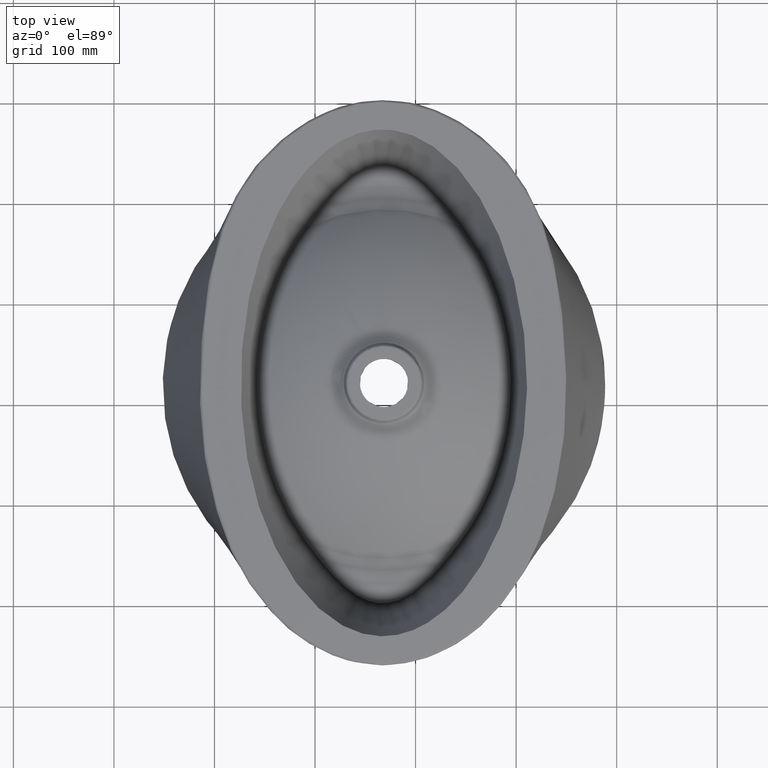
[diagram: clean part render]
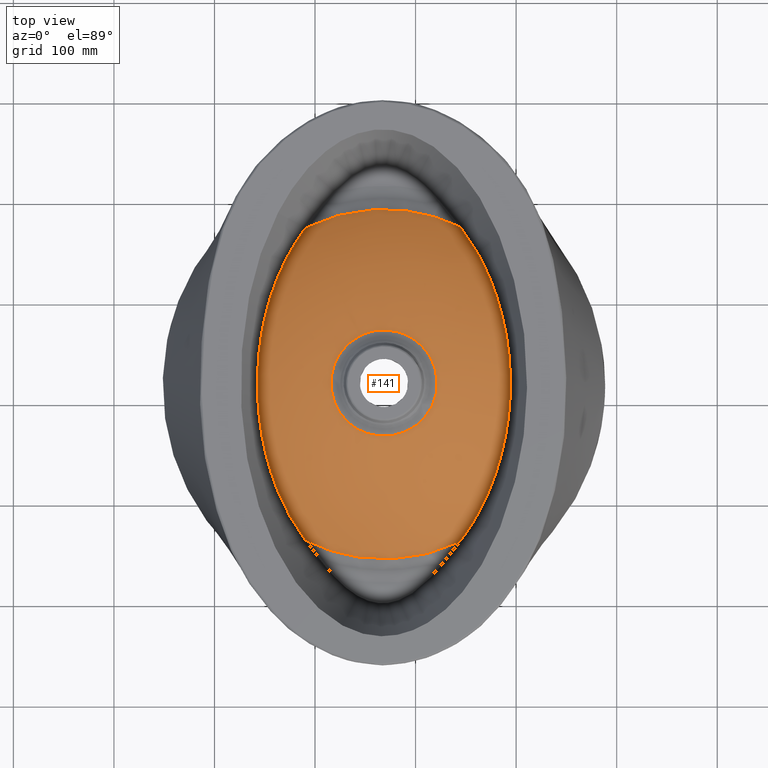
[diagram: same view with one face highlighted and labeled with its STEP entity id]
A machine part, top view. The second image highlights one B-rep face of the part: STEP entity #141.
In plain terms, the highlighted face is a freeform B-spline surface patch.
Its self-contained STEP definition (entity closure, byte-faithful):
#112=B_SPLINE_SURFACE_WITH_KNOTS('',3,3,((#1269,#1270,#1271,#1272,#1273,
#1274,#1275,#1276,#1277,#1278,#1279,#1280,#1281,#1282,#1283,#1284),(#1285,
#1286,#1287,#1288,#1289,#1290,#1291,#1292,#1293,#1294,#1295,#1296,#1297,
#1298,#1299,#1300),(#1301,#1302,#1303,#1304,#1305,#1306,#1307,#1308,#1309,
#1310,#1311,#1312,#1313,#1314,#1315,#1316),(#1317,#1318,#1319,#1320,#1321,
#1322,#1323,#1324,#1325,#1326,#1327,#1328,#1329,#1330,#1331,#1332),(#1333,
#1334,#1335,#1336,#1337,#1338,#1339,#1340,#1341,#1342,#1343,#1344,#1345,
#1346,#1347,#1348),(#1349,#1350,#1351,#1352,#1353,#1354,#1355,#1356,#1357,
#1358,#1359,#1360,#1361,#1362,#1363,#1364),(#1365,#1366,#1367,#1368,#1369,
#1370,#1371,#1372,#1373,#1374,#1375,#1376,#1377,#1378,#1379,#1380),(#1381,
#1382,#1383,#1384,#1385,#1386,#1387,#1388,#1389,#1390,#1391,#1392,#1393,
#1394,#1395,#1396),(#1397,#1398,#1399,#1400,#1401,#1402,#1403,#1404,#1405,
#1406,#1407,#1408,#1409,#1410,#1411,#1412),(#1413,#1414,#1415,#1416,#1417,
#1418,#1419,#1420,#1421,#1422,#1423,#1424,#1425,#1426,#1427,#1428),(#1429,
#1430,#1431,#1432,#1433,#1434,#1435,#1436,#1437,#1438,#1439,#1440,#1441,
#1442,#1443,#1444),(#1445,#1446,#1447,#1448,#1449,#1450,#1451,#1452,#1453,
#1454,#1455,#1456,#1457,#1458,#1459,#1460),(#1461,#1462,#1463,#1464,#1465,
#1466,#1467,#1468,#1469,#1470,#1471,#1472,#1473,#1474,#1475,#1476),(#1477,
#1478,#1479,#1480,#1481,#1482,#1483,#1484,#1485,#1486,#1487,#1488,#1489,
#1490,#1491,#1492),(#1493,#1494,#1495,#1496,#1497,#1498,#1499,#1500,#1501,
#1502,#1503,#1504,#1505,#1506,#1507,#1508),(#1509,#1510,#1511,#1512,#1513,
#1514,#1515,#1516,#1517,#1518,#1519,#1520,#1521,#1522,#1523,#1524),(#1525,
#1526,#1527,#1528,#1529,#1530,#1531,#1532,#1533,#1534,#1535,#1536,#1537,
#1538,#1539,#1540),(#1541,#1542,#1543,#1544,#1545,#1546,#1547,#1548,#1549,
#1550,#1551,#1552,#1553,#1554,#1555,#1556),(#1557,#1558,#1559,#1560,#1561,
#1562,#1563,#1564,#1565,#1566,#1567,#1568,#1569,#1570,#1571,#1572),(#1573,
#1574,#1575,#1576,#1577,#1578,#1579,#1580,#1581,#1582,#1583,#1584,#1585,
#1586,#1587,#1588),(#1589,#1590,#1591,#1592,#1593,#1594,#1595,#1596,#1597,
#1598,#1599,#1600,#1601,#1602,#1603,#1604),(#1605,#1606,#1607,#1608,#1609,
#1610,#1611,#1612,#1613,#1614,#1615,#1616,#1617,#1618,#1619,#1620),(#1621,
#1622,#1623,#1624,#1625,#1626,#1627,#1628,#1629,#1630,#1631,#1632,#1633,
#1634,#1635,#1636),(#1637,#1638,#1639,#1640,#1641,#1642,#1643,#1644,#1645,
#1646,#1647,#1648,#1649,#1650,#1651,#1652),(#1653,#1654,#1655,#1656,#1657,
#1658,#1659,#1660,#1661,#1662,#1663,#1664,#1665,#1666,#1667,#1668),(#1669,
#1670,#1671,#1672,#1673,#1674,#1675,#1676,#1677,#1678,#1679,#1680,#1681,
#1682,#1683,#1684),(#1685,#1686,#1687,#1688,#1689,#1690,#1691,#1692,#1693,
#1694,#1695,#1696,#1697,#1698,#1699,#1700),(#1701,#1702,#1703,#1704,#1705,
#1706,#1707,#1708,#1709,#1710,#1711,#1712,#1713,#1714,#1715,#1716),(#1717,
#1718,#1719,#1720,#1721,#1722,#1723,#1724,#1725,#1726,#1727,#1728,#1729,
#1730,#1731,#1732),(#1733,#1734,#1735,#1736,#1737,#1738,#1739,#1740,#1741,
#1742,#1743,#1744,#1745,#1746,#1747,#1748),(#1749,#1750,#1751,#1752,#1753,
#1754,#1755,#1756,#1757,#1758,#1759,#1760,#1761,#1762,#1763,#1764),(#1765,
#1766,#1767,#1768,#1769,#1770,#1771,#1772,#1773,#1774,#1775,#1776,#1777,
#1778,#1779,#1780),(#1781,#1782,#1783,#1784,#1785,#1786,#1787,#1788,#1789,
#1790,#1791,#1792,#1793,#1794,#1795,#1796),(#1797,#1798,#1799,#1800,#1801,
#1802,#1803,#1804,#1805,#1806,#1807,#1808,#1809,#1810,#1811,#1812)),
 .UNSPECIFIED.,.T.,.F.,.F.,(1,3,2,2,2,2,2,2,2,2,2,2,2,2,2,2,2,3,1),(4,2,
2,1,1,3,3,4),(-0.0625000000000001,0.,0.0625000000000001,0.125,0.1875,0.25,
0.3125,0.375,0.4375,0.5,0.5625,0.625,0.6875,0.75,0.8125,0.875,0.9375,1.,
1.0625),(0.,0.0907513035158669,0.318999822234712,0.374664670297258,0.445354135735602,
0.906199662762278,0.936128689399076,1.),.UNSPECIFIED.);
#141=ADVANCED_FACE('',(#169,#170),#112,.F.);
#169=FACE_BOUND('',#202,.T.);
#170=FACE_BOUND('',#203,.T.);
#202=EDGE_LOOP('',(#249,#250,#251,#252));
#203=EDGE_LOOP('',(#253));
#249=ORIENTED_EDGE('',*,*,#355,.T.);
#250=ORIENTED_EDGE('',*,*,#353,.F.);
#251=ORIENTED_EDGE('',*,*,#356,.T.);
#252=ORIENTED_EDGE('',*,*,#357,.F.);
#253=ORIENTED_EDGE('',*,*,#358,.F.);
#321=VERTEX_POINT('',#979);
#324=VERTEX_POINT('',#996);
#325=VERTEX_POINT('',#1139);
#326=VERTEX_POINT('',#1162);
#327=VERTEX_POINT('',#1268);
#353=EDGE_CURVE('',#324,#321,#392,.T.);
#355=EDGE_CURVE('',#325,#321,#394,.T.);
#356=EDGE_CURVE('',#324,#326,#395,.T.);
#357=EDGE_CURVE('',#325,#326,#396,.T.);
#358=EDGE_CURVE('',#327,#327,#397,.T.);
#392=B_SPLINE_CURVE_WITH_KNOTS('',3,(#997,#998,#999,#1000,#1001,#1002,#1003,
#1004,#1005,#1006,#1007,#1008,#1009,#1010,#1011,#1012),.UNSPECIFIED.,.F.,
 .F.,(4,2,2,2,2,2,2,4),(0.,0.125,0.25,0.375,0.5,0.75,0.875,1.),
 .UNSPECIFIED.);
#394=B_SPLINE_CURVE_WITH_KNOTS('',3,(#1117,#1118,#1119,#1120,#1121,#1122,
#1123,#1124,#1125,#1126,#1127,#1128,#1129,#1130,#1131,#1132,#1133,#1134,
#1135,#1136,#1137,#1138),.UNSPECIFIED.,.F.,.F.,(4,2,2,2,2,2,2,2,2,2,4),
(0.,0.125,0.25,0.375,0.4375,0.5,0.625,0.6875,0.75,0.875,1.),
 .UNSPECIFIED.);
#395=B_SPLINE_CURVE_WITH_KNOTS('',3,(#1140,#1141,#1142,#1143,#1144,#1145,
#1146,#1147,#1148,#1149,#1150,#1151,#1152,#1153,#1154,#1155,#1156,#1157,
#1158,#1159,#1160,#1161),.UNSPECIFIED.,.F.,.F.,(4,2,2,2,2,2,2,2,2,2,4),
(0.,0.125,0.250000000000001,0.375000000000001,0.437500000000001,0.500000000000001,
0.625000000000001,0.750000000000001,0.812500000000001,0.875,1.),
 .UNSPECIFIED.);
#396=B_SPLINE_CURVE_WITH_KNOTS('',3,(#1163,#1164,#1165,#1166,#1167,#1168,
#1169,#1170,#1171,#1172,#1173,#1174,#1175,#1176),.UNSPECIFIED.,.F.,.F.,
(4,2,2,2,2,2,4),(0.,0.25,0.375,0.5,0.624999999999999,0.749999999999999,
1.),.UNSPECIFIED.);
#397=B_SPLINE_CURVE_WITH_KNOTS('',3,(#1177,#1178,#1179,#1180,#1181,#1182,
#1183,#1184,#1185,#1186,#1187,#1188,#1189,#1190,#1191,#1192,#1193,#1194,
#1195,#1196,#1197,#1198,#1199,#1200,#1201,#1202,#1203,#1204,#1205,#1206,
#1207,#1208,#1209,#1210,#1211,#1212,#1213,#1214,#1215,#1216,#1217,#1218,
#1219,#1220,#1221,#1222,#1223,#1224,#1225,#1226,#1227,#1228,#1229,#1230,
#1231,#1232,#1233,#1234,#1235,#1236,#1237,#1238,#1239,#1240,#1241,#1242,
#1243,#1244,#1245,#1246,#1247,#1248,#1249,#1250,#1251,#1252,#1253,#1254,
#1255,#1256,#1257,#1258,#1259,#1260,#1261,#1262,#1263,#1264,#1265,#1266,
#1267),.UNSPECIFIED.,.T.,.F.,(1,3,3,3,3,3,3,3,3,3,3,3,3,3,3,3,3,3,3,3,3,
3,3,3,3,3,3,3,3,3,3,3,1),(-0.03125,0.,0.03125,0.0624999999999999,0.09375,
0.125,0.15625,0.1875,0.25,0.28125,0.3125,0.34375,0.375,0.40625,0.4375,0.46875,
0.5,0.53125,0.5625,0.59375,0.625,0.65625,0.6875,0.71875,0.75,0.8125,0.84375,
0.875,0.90625,0.9375,0.96875,1.,1.03125),.UNSPECIFIED.);
#979=CARTESIAN_POINT('',(190.471527453963,-335.352552085992,174.235832541991));
#996=CARTESIAN_POINT('',(344.298156482571,-336.535011899422,174.235758374124));
#997=CARTESIAN_POINT('',(344.298156488452,-336.53501190857,174.235758364197));
#998=CARTESIAN_POINT('',(338.307659942318,-339.436119401214,174.235581041099));
#999=CARTESIAN_POINT('',(332.08750896722,-342.013617504608,174.235579682479));
#1000=CARTESIAN_POINT('',(319.542024992611,-346.379856047103,174.235932256303));
#1001=CARTESIAN_POINT('',(313.180790894595,-348.191234706339,174.236155867952));
#1002=CARTESIAN_POINT('',(300.285737439654,-351.088990115187,174.236279668447));
#1003=CARTESIAN_POINT('',(293.751922241343,-352.175384334439,174.236180157327));
#1004=CARTESIAN_POINT('',(280.506856192595,-353.602795167388,174.235818518881));
#1005=CARTESIAN_POINT('',(273.787188722761,-353.937628014429,174.235561582834));
#1006=CARTESIAN_POINT('',(253.8776837733,-353.771656630179,174.235679274193));
#1007=CARTESIAN_POINT('',(240.761594780939,-352.151062803847,174.236382458085));
#1008=CARTESIAN_POINT('',(221.321678366709,-347.466360974201,174.236086314143));
#1009=CARTESIAN_POINT('',(214.889716877692,-345.519741053868,174.23583318386));
#1010=CARTESIAN_POINT('',(202.436422022957,-340.954103383553,174.235538547599));
#1011=CARTESIAN_POINT('',(196.373581246639,-338.323845067228,174.235643529919));
#1012=CARTESIAN_POINT('',(190.471527453963,-335.352552085992,174.235832541991));
#1117=CARTESIAN_POINT('',(190.414127491307,-24.6763583060649,174.235834381196));
#1118=CARTESIAN_POINT('',(182.507343529488,-35.2544460533712,179.650605385927));
#1119=CARTESIAN_POINT('',(175.610059016357,-46.6071844399784,184.520847973194));
#1120=CARTESIAN_POINT('',(163.677942868598,-70.7923715927532,193.128342140662));
#1121=CARTESIAN_POINT('',(158.63098625325,-83.7317023754905,196.868170075446));
#1122=CARTESIAN_POINT('',(150.653266314557,-110.172298942855,202.850153040022));
#1123=CARTESIAN_POINT('',(147.665204860514,-123.757657697426,205.142910687802));
#1124=CARTESIAN_POINT('',(144.667929117978,-144.691399954168,207.468065006289));
#1125=CARTESIAN_POINT('',(143.915860239871,-151.793226793861,208.059106007071));
#1126=CARTESIAN_POINT('',(142.926924754641,-165.934240579954,208.844263260057));
#1127=CARTESIAN_POINT('',(142.684894926939,-172.99320954955,209.042318415293));
#1128=CARTESIAN_POINT('',(142.686688222448,-194.136045352349,209.039425291004));
#1129=CARTESIAN_POINT('',(143.653216600279,-208.186304576586,208.255631847802));
#1130=CARTESIAN_POINT('',(146.657111350016,-229.191717069395,205.929948041427));
#1131=CARTESIAN_POINT('',(147.920738468163,-236.161618889732,204.95754944242));
#1132=CARTESIAN_POINT('',(150.926391035342,-249.795570529499,202.667099032025));
#1133=CARTESIAN_POINT('',(152.672371877332,-256.49483890912,201.346825040802));
#1134=CARTESIAN_POINT('',(158.633932499401,-276.245035684285,196.876516707667));
#1135=CARTESIAN_POINT('',(163.572417076385,-288.9491250587,193.219318638318));
#1136=CARTESIAN_POINT('',(175.607351806135,-313.359443767086,184.550959753047));
#1137=CARTESIAN_POINT('',(182.552597392638,-324.773798391424,179.6501497898));
#1138=CARTESIAN_POINT('',(190.471527453963,-335.352552085992,174.235832541991));
#1139=CARTESIAN_POINT('',(190.414127491307,-24.6763583060649,174.235834381195));
#1140=CARTESIAN_POINT('',(344.298156472165,-336.53501189613,174.235758381019));
#1141=CARTESIAN_POINT('',(352.464284456458,-325.964535213402,179.710904624166));
#1142=CARTESIAN_POINT('',(359.604136086916,-314.576415791317,184.637202819987));
#1143=CARTESIAN_POINT('',(372.028608605658,-290.250478862444,193.319118133339));
#1144=CARTESIAN_POINT('',(377.300577616938,-277.23286817896,197.074146484403));
#1145=CARTESIAN_POINT('',(385.697141739501,-250.604411095599,203.048001725075));
#1146=CARTESIAN_POINT('',(388.898451385314,-236.891760436569,205.317265518116));
#1147=CARTESIAN_POINT('',(392.168141299961,-215.70524331624,207.590426995453));
#1148=CARTESIAN_POINT('',(392.998320207261,-208.53139141298,208.159438787304));
#1149=CARTESIAN_POINT('',(394.096451160312,-194.26828249511,208.912387231701));
#1150=CARTESIAN_POINT('',(394.371614231158,-187.142787026881,209.100730873919));
#1151=CARTESIAN_POINT('',(394.371823598828,-165.784515436539,209.102868067512));
#1152=CARTESIAN_POINT('',(393.28576240097,-151.569635683273,208.363976103315));
#1153=CARTESIAN_POINT('',(388.923223207063,-123.18888146232,205.328820885075));
#1154=CARTESIAN_POINT('',(385.714346576381,-109.445948191364,203.052855492515));
#1155=CARTESIAN_POINT('',(379.444009596421,-89.5181592655694,198.583821818669));
#1156=CARTESIAN_POINT('',(377.105105703521,-82.9885789899287,196.918223101318));
#1157=CARTESIAN_POINT('',(371.903002370207,-70.1643787923986,193.231248267213));
#1158=CARTESIAN_POINT('',(369.024609181685,-63.8424516877066,191.198534853131));
#1159=CARTESIAN_POINT('',(359.680001795132,-45.4974753674664,184.657481870079));
#1160=CARTESIAN_POINT('',(352.529781788167,-34.0766724705649,179.71372890226));
#1161=CARTESIAN_POINT('',(344.369303668841,-23.4994636397002,174.235760473812));
#1162=CARTESIAN_POINT('',(344.369303668841,-23.4994636397002,174.235760473811));
#1163=CARTESIAN_POINT('',(190.414127491307,-24.676358306065,174.235834381195));
#1164=CARTESIAN_POINT('',(202.330721062866,-18.6716142833,174.235452349387));
#1165=CARTESIAN_POINT('',(214.761494083901,-14.123177329221,174.235983528897));
#1166=CARTESIAN_POINT('',(234.161353179014,-9.43522019165913,174.236283318006));
#1167=CARTESIAN_POINT('',(240.79531116283,-8.22826512452888,174.236230082731));
#1168=CARTESIAN_POINT('',(254.026423080491,-6.59934389711401,174.235905169944));
#1169=CARTESIAN_POINT('',(260.642946653653,-6.16775456590235,174.235636486885));
#1170=CARTESIAN_POINT('',(273.877917804909,-6.06587735437744,174.235563888883));
#1171=CARTESIAN_POINT('',(280.496367938661,-6.39660070826258,174.235818158425));
#1172=CARTESIAN_POINT('',(293.735199639899,-7.82228837684567,174.236179774676));
#1173=CARTESIAN_POINT('',(300.388765848443,-8.92814653830156,174.236280840815));
#1174=CARTESIAN_POINT('',(319.879022955658,-13.3262264938403,174.236087160846));
#1175=CARTESIAN_POINT('',(332.376971615499,-17.6850017762589,174.235404280131));
#1176=CARTESIAN_POINT('',(344.369303668841,-23.4994636397002,174.235760473811));
#1177=CARTESIAN_POINT('',(251.203603856285,-229.984057679828,236.484429534104));
#1178=CARTESIAN_POINT('',(254.504285074435,-231.131225509551,236.4841846388));
#1179=CARTESIAN_POINT('',(257.865625167746,-231.938429762098,236.48351633577));
#1180=CARTESIAN_POINT('',(261.280975095904,-232.413874064229,236.483826752391));
#1181=CARTESIAN_POINT('',(264.696325024061,-232.889318366359,236.484137169011));
#1182=CARTESIAN_POINT('',(268.200274221157,-233.030035621638,236.484967793712));
#1183=CARTESIAN_POINT('',(271.661541713452,-232.8296229206,236.484360338313));
#1184=CARTESIAN_POINT('',(275.122809205748,-232.629210219562,236.483752882915));
#1185=CARTESIAN_POINT('',(278.529476222532,-232.091770768165,236.483540319828));
#1186=CARTESIAN_POINT('',(281.877086609996,-231.221788737702,236.484007594477));
#1187=CARTESIAN_POINT('',(285.22469699746,-230.351806707239,236.484474869126));
#1188=CARTESIAN_POINT('',(288.5268212123,-229.136029867212,236.485121776906));
#1189=CARTESIAN_POINT('',(291.634078423746,-227.634372946672,236.48440946252));
#1190=CARTESIAN_POINT('',(294.741335635192,-226.132716026133,236.483697148134));
#1191=CARTESIAN_POINT('',(297.687403980707,-224.334370851027,236.483536503372));
#1192=CARTESIAN_POINT('',(300.464801097345,-222.236472945791,236.484010315969));
#1193=CARTESIAN_POINT('',(303.242198213984,-220.138575040556,236.484484128567));
#1194=CARTESIAN_POINT('',(305.804468607405,-217.772913121959,236.484733044393));
#1195=CARTESIAN_POINT('',(308.096853649246,-215.200751658895,236.484248271385));
#1196=CARTESIAN_POINT('',(312.681623732927,-210.056428732767,236.483278725371));
#1197=CARTESIAN_POINT('',(316.283608489224,-203.932423104972,236.48474632667));
#1198=CARTESIAN_POINT('',(318.553520745294,-197.416270213941,236.4843273849));
#1199=CARTESIAN_POINT('',(319.688476873329,-194.158193768426,236.484117914015));
#1200=CARTESIAN_POINT('',(320.515625174468,-190.731904961712,236.484046832912));
#1201=CARTESIAN_POINT('',(320.994937087167,-187.303804866945,236.483961079013));
#1202=CARTESIAN_POINT('',(321.474248999865,-183.875704772179,236.483875325114));
#1203=CARTESIAN_POINT('',(321.613521571772,-180.435444203188,236.484568748967));
#1204=CARTESIAN_POINT('',(321.414512197684,-176.975495973843,236.484443103605));
#1205=CARTESIAN_POINT('',(321.215502823597,-173.515547744497,236.484317458243));
#1206=CARTESIAN_POINT('',(320.668950618815,-170.04117594627,236.483976786526));
#1207=CARTESIAN_POINT('',(319.803478140108,-166.701971303312,236.483928324786));
#1208=CARTESIAN_POINT('',(318.938005661402,-163.362766660354,236.483879863046));
#1209=CARTESIAN_POINT('',(317.751769132524,-160.123421843426,236.484506595007));
#1210=CARTESIAN_POINT('',(316.232107010083,-156.979779561151,236.484358570221));
#1211=CARTESIAN_POINT('',(314.712444887643,-153.836137278877,236.484210545435));
#1212=CARTESIAN_POINT('',(312.901716921675,-150.880772617699,236.484086001442));
#1213=CARTESIAN_POINT('',(310.823715268411,-148.128382497676,236.484549632874));
#1214=CARTESIAN_POINT('',(308.745713615147,-145.375992377652,236.485013264306));
#1215=CARTESIAN_POINT('',(306.373997015727,-142.797012894496,236.485082935706));
#1216=CARTESIAN_POINT('',(303.784673657299,-140.487590887325,236.484362058981));
#1217=CARTESIAN_POINT('',(301.195350298871,-138.178168880154,236.483641182256));
#1218=CARTESIAN_POINT('',(298.405602989752,-136.149995924477,236.483988181904));
#1219=CARTESIAN_POINT('',(295.42658777178,-134.396083930548,236.484172694874));
#1220=CARTESIAN_POINT('',(292.447572553808,-132.642171936619,236.484357207845));
#1221=CARTESIAN_POINT('',(289.258754359691,-131.162533016703,236.484502349206));
#1222=CARTESIAN_POINT('',(285.976576135453,-130.020181131538,236.484166828252));
#1223=CARTESIAN_POINT('',(282.694397911215,-128.877829246374,236.483831307299));
#1224=CARTESIAN_POINT('',(279.26927963217,-128.058281282792,236.484208553686));
#1225=CARTESIAN_POINT('',(275.844562814442,-127.583005263148,236.484297335159));
#1226=CARTESIAN_POINT('',(272.419845996713,-127.107729243505,236.484386116631));
#1227=CARTESIAN_POINT('',(268.979448007183,-126.967816801255,236.484531999096));
#1228=CARTESIAN_POINT('',(265.51531609032,-127.168792596557,236.484183876296));
#1229=CARTESIAN_POINT('',(262.051184173457,-127.369768391859,236.483835753496));
#1230=CARTESIAN_POINT('',(258.584752038489,-127.919965803922,236.483846036418));
#1231=CARTESIAN_POINT('',(255.247722868208,-128.788526761197,236.484027456491));
#1232=CARTESIAN_POINT('',(251.910693697926,-129.657087718471,236.484208876565));
#1233=CARTESIAN_POINT('',(248.663800359213,-130.848658586891,236.484788405733));
#1234=CARTESIAN_POINT('',(245.521142996613,-132.370075345379,236.484430700069));
#1235=CARTESIAN_POINT('',(242.378485634014,-133.891492103866,236.484072994405));
#1236=CARTESIAN_POINT('',(239.431720760806,-135.697114954661,236.483436220711));
#1237=CARTESIAN_POINT('',(236.679950744925,-137.776649623423,236.483753332178));
#1238=CARTESIAN_POINT('',(233.928180729043,-139.856184292185,236.484070443645));
#1239=CARTESIAN_POINT('',(231.349854494529,-142.238212606469,236.485227314462));
#1240=CARTESIAN_POINT('',(229.045564591665,-144.827175240955,236.484733430277));
#1241=CARTESIAN_POINT('',(226.7412746888,-147.416137875441,236.484239546092));
#1242=CARTESIAN_POINT('',(224.710117869525,-150.204467107586,236.483538093153));
#1243=CARTESIAN_POINT('',(222.956408614968,-153.188906189885,236.483793010407));
#1244=CARTESIAN_POINT('',(221.202699360411,-156.173345272184,236.484047927661));
#1245=CARTESIAN_POINT('',(219.73040319185,-159.369248473656,236.485176179643));
#1246=CARTESIAN_POINT('',(218.596705307143,-162.628872940857,236.484674025514));
#1247=CARTESIAN_POINT('',(216.329309537728,-169.148121875257,236.483669717256));
#1248=CARTESIAN_POINT('',(215.351100294958,-176.186962818079,236.484782089429));
#1249=CARTESIAN_POINT('',(215.752560334969,-183.068146457846,236.484520250633));
#1250=CARTESIAN_POINT('',(215.953290354975,-186.508738277729,236.484389331235));
#1251=CARTESIAN_POINT('',(216.496228780502,-189.961636078684,236.484513203026));
#1252=CARTESIAN_POINT('',(217.372000847585,-193.331229391843,236.484475947164));
#1253=CARTESIAN_POINT('',(218.247772914668,-196.700822705001,236.484438691301));
#1254=CARTESIAN_POINT('',(219.439297033806,-199.934369398847,236.484637409876));
#1255=CARTESIAN_POINT('',(220.942810644344,-203.041781574851,236.484418059583));
#1256=CARTESIAN_POINT('',(222.446324254882,-206.149193750854,236.48419870929));
#1257=CARTESIAN_POINT('',(224.287055083008,-209.157692622655,236.484127897629));
#1258=CARTESIAN_POINT('',(226.373130333001,-211.919001151154,236.484031090563));
#1259=CARTESIAN_POINT('',(228.459205582994,-214.680309679653,236.483934283497));
#1260=CARTESIAN_POINT('',(230.795338842015,-217.211258499501,236.48462700862));
#1261=CARTESIAN_POINT('',(233.386460713072,-219.517740969352,236.484498251119));
#1262=CARTESIAN_POINT('',(235.97758258413,-221.824223439202,236.484369493618));
#1263=CARTESIAN_POINT('',(238.820007553982,-223.891191409492,236.48398328872));
#1264=CARTESIAN_POINT('',(241.794465010375,-225.63853652409,236.483962761576));
#1265=CARTESIAN_POINT('',(244.768922466768,-227.385881638689,236.483942234433));
#1266=CARTESIAN_POINT('',(247.902922638135,-228.836889850104,236.484674429408));
#1267=CARTESIAN_POINT('',(251.203603856285,-229.984057679828,236.484429534104));
#1268=CARTESIAN_POINT('',(251.203605521211,-229.984052884276,236.484430601418));
#1269=CARTESIAN_POINT('',(216.49785413358,-180.,236.658664353216));
#1270=CARTESIAN_POINT('',(205.197898576243,-180.,234.321859909813));
#1271=CARTESIAN_POINT('',(194.054829663015,-180.,231.227213719352));
#1272=CARTESIAN_POINT('',(155.798970673881,-180.,217.747191309418));
#1273=CARTESIAN_POINT('',(130.081619649957,-180.,203.423687043445));
#1274=CARTESIAN_POINT('',(101.955918517741,-180.,180.79279122826));
#1275=CARTESIAN_POINT('',(89.8593779786004,-180.,170.199571483135));
#1276=CARTESIAN_POINT('',(38.4633410542668,-180.,115.901774926316));
#1277=CARTESIAN_POINT('',(-8.06050008772502,-180.,66.7512525798416));
#1278=CARTESIAN_POINT('',(-48.3970807349485,-180.,24.137316158924));
#1279=CARTESIAN_POINT('',(-51.0166886639156,-180.,21.3698082556378));
#1280=CARTESIAN_POINT('',(-53.6362965928827,-180.,18.6023003523516));
#1281=CARTESIAN_POINT('',(-56.2559045218497,-180.,15.8347924490653));
#1282=CARTESIAN_POINT('',(-61.8463900967458,-180.,9.92867465156983));
#1283=CARTESIAN_POINT('',(-67.4368756716419,-180.,4.02255685407434));
#1284=CARTESIAN_POINT('',(-73.027361246538,-180.,-1.88356094342115));
#1285=CARTESIAN_POINT('',(216.49785413358,-186.817809815541,236.658664353217));
#1286=CARTESIAN_POINT('',(205.197898576243,-188.296970539075,234.321859909813));
#1287=CARTESIAN_POINT('',(194.054829663015,-189.755594848918,231.227213719352));
#1288=CARTESIAN_POINT('',(155.798970673881,-194.763275080461,217.747191309418));
#1289=CARTESIAN_POINT('',(130.081619649957,-198.129668457401,203.423687043445));
#1290=CARTESIAN_POINT('',(101.955918517741,-201.811314126319,180.79279122826));
#1291=CARTESIAN_POINT('',(89.8593779785998,-203.394747580136,170.199571483135));
#1292=CARTESIAN_POINT('',(38.4633410542674,-210.122473081182,115.901774926316));
#1293=CARTESIAN_POINT('',(-8.0605000877248,-216.212429645699,66.7512525798389));
#1294=CARTESIAN_POINT('',(-48.3970807349482,-221.492475705374,24.1373161589199));
#1295=CARTESIAN_POINT('',(-51.0166886639152,-221.835381581413,21.3698082556335));
#1296=CARTESIAN_POINT('',(-53.6362965928823,-222.178287457451,18.6023003523472));
#1297=CARTESIAN_POINT('',(-56.2559045218493,-222.52119333349,15.8347924490609));
#1298=CARTESIAN_POINT('',(-61.8463900967454,-223.252986183993,9.92867465156518));
#1299=CARTESIAN_POINT('',(-67.4368756716415,-223.984779034497,4.02255685406949));
#1300=CARTESIAN_POINT('',(-73.0273612465375,-224.716571885001,-1.8835609434262));
#1301=CARTESIAN_POINT('',(217.85346723852,-193.632937114053,236.658664353217));
#1302=CARTESIAN_POINT('',(206.847619278108,-196.59067657454,234.321859909813));
#1303=CARTESIAN_POINT('',(195.994574622392,-199.507351287847,231.227213719352));
#1304=CARTESIAN_POINT('',(158.734413244499,-209.5207414426,217.747191309418));
#1305=CARTESIAN_POINT('',(133.68641603091,-216.252203664437,203.423687043445));
#1306=CARTESIAN_POINT('',(106.292751615992,-223.614046431916,180.79279122826));
#1307=CARTESIAN_POINT('',(94.5110516486583,-226.780290326102,170.199571483135));
#1308=CARTESIAN_POINT('',(44.4527159953213,-240.233094255499,115.901774926315));
#1309=CARTESIAN_POINT('',(-0.860234090636181,-252.410611246685,66.751252579843));
#1310=CARTESIAN_POINT('',(-40.1469615112601,-262.968625893384,24.1373161589261));
#1311=CARTESIAN_POINT('',(-42.6983880576577,-263.654302726642,21.3698082556399));
#1312=CARTESIAN_POINT('',(-45.2498146040553,-264.3399795599,18.6023003523537));
#1313=CARTESIAN_POINT('',(-47.8012411504529,-265.025656393158,15.8347924490675));
#1314=CARTESIAN_POINT('',(-53.2462213497101,-266.488954164929,9.92867465157213));
#1315=CARTESIAN_POINT('',(-58.6912015489673,-267.952251936699,4.02255685407674));
#1316=CARTESIAN_POINT('',(-64.1361817482245,-269.415549708469,-1.88356094341865));
#1317=CARTESIAN_POINT('',(223.071592961368,-206.230607004317,236.658664353216));
#1318=CARTESIAN_POINT('',(213.197845606358,-211.92147910034,234.321859909813));
#1319=CARTESIAN_POINT('',(203.461183665487,-217.533340104622,231.227213719351));
#1320=CARTESIAN_POINT('',(170.033734805982,-236.799716801943,217.747191309417));
#1321=CARTESIAN_POINT('',(147.562263536749,-249.751462902452,203.423687043445));
#1322=CARTESIAN_POINT('',(122.986408724499,-263.916099828875,180.792791228259));
#1323=CARTESIAN_POINT('',(112.416616255222,-270.008147241212,170.199571483134));
#1324=CARTESIAN_POINT('',(67.5074587753873,-295.892166952148,115.901774926318));
#1325=CARTESIAN_POINT('',(26.8555596515591,-319.322456391011,66.7512525798457));
#1326=CARTESIAN_POINT('',(-8.38999547073831,-339.636724008211,24.1373161589299));
#1327=CARTESIAN_POINT('',(-10.6789732218946,-340.956008282369,21.3698082556438));
#1328=CARTESIAN_POINT('',(-12.9679509730509,-342.275292556527,18.6023003523577));
#1329=CARTESIAN_POINT('',(-15.2569287242072,-343.594576830684,15.8347924490716));
#1330=CARTESIAN_POINT('',(-20.1418189238422,-346.410051475691,9.92867465157632));
#1331=CARTESIAN_POINT('',(-25.0267091234772,-349.225526120698,4.02255685408108));
#1332=CARTESIAN_POINT('',(-29.9115993231122,-352.041000765705,-1.88356094341415));
#1333=CARTESIAN_POINT('',(226.932052469625,-212.008192950914,236.658664353217));
#1334=CARTESIAN_POINT('',(217.89585268985,-218.952543574538,234.321859909813));
#1335=CARTESIAN_POINT('',(208.985109957384,-225.800480025616,231.227213719352));
#1336=CARTESIAN_POINT('',(178.393167996313,-249.310492687211,217.747191309418));
#1337=CARTESIAN_POINT('',(157.827855108166,-265.115006405408,203.423687043445));
#1338=CARTESIAN_POINT('',(135.336664493532,-282.399563783206,180.79279122826));
#1339=CARTESIAN_POINT('',(125.663462116656,-289.833453094578,170.199571483135));
#1340=CARTESIAN_POINT('',(84.563755557593,-321.418719006143,115.901774926314));
#1341=CARTESIAN_POINT('',(47.3601824153422,-350.009792980592,66.751252579839));
#1342=CARTESIAN_POINT('',(15.1043563360374,-374.798506312351,24.1373161589204));
#1343=CARTESIAN_POINT('',(13.0095427351591,-376.408377772718,21.3698082556341));
#1344=CARTESIAN_POINT('',(10.9147291342807,-378.018249233086,18.6023003523478));
#1345=CARTESIAN_POINT('',(8.81991553340239,-379.628120693453,15.8347924490614));
#1346=CARTESIAN_POINT('',(4.34938958625264,-383.063735266573,9.9286746515658));
#1347=CARTESIAN_POINT('',(-0.121136360897106,-386.499349839693,4.02255685407015));
#1348=CARTESIAN_POINT('',(-4.59166230804685,-389.934964412813,-1.88356094342549));
#1349=CARTESIAN_POINT('',(236.573891576444,-221.650032057731,236.658664353216));
#1350=CARTESIAN_POINT('',(229.62954095282,-230.686231837507,234.321859909813));
#1351=CARTESIAN_POINT('',(222.781604501742,-239.596974569973,231.227213719351));
#1352=CARTESIAN_POINT('',(199.271591840147,-270.188916531044,217.747191309418));
#1353=CARTESIAN_POINT('',(183.46707812195,-290.75422941919,203.423687043445));
#1354=CARTESIAN_POINT('',(166.182520744152,-313.245420033825,180.79279122826));
#1355=CARTESIAN_POINT('',(158.74863143278,-322.918622410701,170.199571483134));
#1356=CARTESIAN_POINT('',(127.163365521219,-364.018328969754,115.901774926318));
#1357=CARTESIAN_POINT('',(98.5722915467721,-401.221902111999,66.7512525798444));
#1358=CARTESIAN_POINT('',(73.7835782150156,-433.477728191297,24.1373161589279));
#1359=CARTESIAN_POINT('',(72.1737067546485,-435.572541792175,21.3698082556417));
#1360=CARTESIAN_POINT('',(70.5638352942814,-437.667355393053,18.6023003523555));
#1361=CARTESIAN_POINT('',(68.9539638339143,-439.76216899393,15.8347924490694));
#1362=CARTESIAN_POINT('',(65.5183492607947,-444.232694941079,9.92867465157403));
#1363=CARTESIAN_POINT('',(62.082734687675,-448.703220888228,4.02255685407869));
#1364=CARTESIAN_POINT('',(58.6471201145553,-453.173746835377,-1.88356094341665));
#1365=CARTESIAN_POINT('',(242.35147752304,-225.51049156599,236.658664353216));
#1366=CARTESIAN_POINT('',(236.660605427017,-235.384238920999,234.321859909813));
#1367=CARTESIAN_POINT('',(231.048744422735,-245.120900861871,231.227213719352));
#1368=CARTESIAN_POINT('',(211.782367725414,-278.548349721376,217.747191309418));
#1369=CARTESIAN_POINT('',(198.830621624905,-301.01982099061,203.423687043445));
#1370=CARTESIAN_POINT('',(184.665984698482,-325.59567580286,180.79279122826));
#1371=CARTESIAN_POINT('',(178.573937286144,-336.165468272136,170.199571483135));
#1372=CARTESIAN_POINT('',(152.689917575209,-381.074625751973,115.901774926316));
#1373=CARTESIAN_POINT('',(129.259628136342,-421.726524875804,66.7512525798432));
#1374=CARTESIAN_POINT('',(108.94536051914,-456.972079998102,24.1373161589263));
#1375=CARTESIAN_POINT('',(107.626076244982,-459.261057749259,21.3698082556401));
#1376=CARTESIAN_POINT('',(106.306791970824,-461.550035500415,18.6023003523539));
#1377=CARTESIAN_POINT('',(104.987507696666,-463.839013251571,15.8347924490677));
#1378=CARTESIAN_POINT('',(102.172033051659,-468.723903451207,9.92867465157233));
#1379=CARTESIAN_POINT('',(99.3565584066516,-473.608793650842,4.02255685407693));
#1380=CARTESIAN_POINT('',(96.5410837616443,-478.493683850477,-1.88356094341846));
#1381=CARTESIAN_POINT('',(254.949147413304,-230.728617288837,236.658664353216));
#1382=CARTESIAN_POINT('',(251.991407952817,-241.734465249249,234.321859909813));
#1383=CARTESIAN_POINT('',(249.07473323951,-252.587509904965,231.227213719352));
#1384=CARTESIAN_POINT('',(239.061343084757,-289.847671282858,217.747191309418));
#1385=CARTESIAN_POINT('',(232.329880862921,-314.895668496448,203.423687043445));
#1386=CARTESIAN_POINT('',(224.968038095442,-342.289332911365,180.79279122826));
#1387=CARTESIAN_POINT('',(221.801794201255,-354.071032878699,170.199571483135));
#1388=CARTESIAN_POINT('',(208.348990271861,-404.129368532032,115.901774926314));
#1389=CARTESIAN_POINT('',(196.171473280677,-449.442318617985,66.7512525798384));
#1390=CARTESIAN_POINT('',(185.613458633979,-488.729046038605,24.1373161589194));
#1391=CARTESIAN_POINT('',(184.927781800721,-491.280472585003,21.369808255633));
#1392=CARTESIAN_POINT('',(184.242104967463,-493.8318991314,18.6023003523467));
#1393=CARTESIAN_POINT('',(183.556428134205,-496.383325677797,15.8347924490604));
#1394=CARTESIAN_POINT('',(182.093130362435,-501.828305877054,9.92867465156466));
#1395=CARTESIAN_POINT('',(180.629832590665,-507.273286076311,4.02255685406897));
#1396=CARTESIAN_POINT('',(179.166534818895,-512.718266275568,-1.88356094342673));
#1397=CARTESIAN_POINT('',(261.764274711816,-232.084230393777,236.658664353216));
#1398=CARTESIAN_POINT('',(260.285113988282,-243.384185951114,234.321859909813));
#1399=CARTESIAN_POINT('',(258.826489678438,-254.527254864342,231.227213719352));
#1400=CARTESIAN_POINT('',(253.818809446896,-292.783113853476,217.747191309418));
#1401=CARTESIAN_POINT('',(250.452416069956,-318.5004648774,203.423687043445));
#1402=CARTESIAN_POINT('',(246.770770401038,-346.626166009617,180.79279122826));
#1403=CARTESIAN_POINT('',(245.18733694722,-358.722706548757,170.199571483135));
#1404=CARTESIAN_POINT('',(238.459611446176,-410.118743473092,115.90177492632));
#1405=CARTESIAN_POINT('',(232.369654881658,-456.642584615088,66.7512525798502));
#1406=CARTESIAN_POINT('',(227.089608821982,-496.979165262315,24.1373161589363));
#1407=CARTESIAN_POINT('',(226.746702945944,-499.598773191282,21.3698082556503));
#1408=CARTESIAN_POINT('',(226.403797069905,-502.218381120249,18.6023003523643));
#1409=CARTESIAN_POINT('',(226.060891193866,-504.837989049217,15.8347924490783));
#1410=CARTESIAN_POINT('',(225.329098343363,-510.428474624113,9.9286746515833));
#1411=CARTESIAN_POINT('',(224.597305492859,-516.01896019901,4.02255685408831));
#1412=CARTESIAN_POINT('',(223.865512642355,-521.609445773907,-1.88356094340667));
#1413=CARTESIAN_POINT('',(275.399894342897,-232.084230393777,236.658664353216));
#1414=CARTESIAN_POINT('',(276.879055066432,-243.384185951114,234.321859909813));
#1415=CARTESIAN_POINT('',(278.337679376275,-254.527254864342,231.227213719351));
#1416=CARTESIAN_POINT('',(283.345359607817,-292.783113853476,217.747191309418));
#1417=CARTESIAN_POINT('',(286.711752984757,-318.5004648774,203.423687043445));
#1418=CARTESIAN_POINT('',(290.393398653675,-346.626166009616,180.79279122826));
#1419=CARTESIAN_POINT('',(291.976832107492,-358.722706548756,170.199571483135));
#1420=CARTESIAN_POINT('',(298.704557608538,-410.118743473092,115.901774926313));
#1421=CARTESIAN_POINT('',(304.794514173053,-456.642584615082,66.7512525798364));
#1422=CARTESIAN_POINT('',(310.074560232729,-496.979165262306,24.1373161589166));
#1423=CARTESIAN_POINT('',(310.417466108767,-499.598773191273,21.3698082556302));
#1424=CARTESIAN_POINT('',(310.760371984806,-502.21838112024,18.6023003523439));
#1425=CARTESIAN_POINT('',(311.103277860844,-504.837989049207,15.8347924490575));
#1426=CARTESIAN_POINT('',(311.835070711348,-510.428474624103,9.92867465156167));
#1427=CARTESIAN_POINT('',(312.566863561852,-516.018960198999,4.02255685406587));
#1428=CARTESIAN_POINT('',(313.298656412355,-521.609445773895,-1.88356094342993));
#1429=CARTESIAN_POINT('',(282.215021641409,-230.728617288836,236.658664353216));
#1430=CARTESIAN_POINT('',(285.172761101896,-241.734465249249,234.321859909813));
#1431=CARTESIAN_POINT('',(288.089435815203,-252.587509904965,231.227213719352));
#1432=CARTESIAN_POINT('',(298.102825969956,-289.847671282858,217.747191309418));
#1433=CARTESIAN_POINT('',(304.834288191792,-314.895668496447,203.423687043445));
#1434=CARTESIAN_POINT('',(312.196130959272,-342.289332911365,180.79279122826));
#1435=CARTESIAN_POINT('',(315.362374853458,-354.071032878699,170.199571483135));
#1436=CARTESIAN_POINT('',(328.815178782854,-404.129368532034,115.901774926316));
#1437=CARTESIAN_POINT('',(340.992695774039,-449.442318617994,66.7512525798422));
#1438=CARTESIAN_POINT('',(351.550710420738,-488.729046038619,24.137316158925));
#1439=CARTESIAN_POINT('',(352.236387253996,-491.280472585016,21.3698082556388));
#1440=CARTESIAN_POINT('',(352.922064087254,-493.831899131414,18.6023003523525));
#1441=CARTESIAN_POINT('',(353.607740920512,-496.383325677812,15.8347924490663));
#1442=CARTESIAN_POINT('',(355.071038692282,-501.828305877069,9.92867465157088));
#1443=CARTESIAN_POINT('',(356.534336464052,-507.273286076326,4.02255685407544));
#1444=CARTESIAN_POINT('',(357.997634235823,-512.718266275584,-1.88356094341999));
#1445=CARTESIAN_POINT('',(294.812691531673,-225.51049156599,236.658664353217));
#1446=CARTESIAN_POINT('',(300.503563627696,-235.384238920999,234.321859909813));
#1447=CARTESIAN_POINT('',(306.115424631978,-245.120900861871,231.227213719352));
#1448=CARTESIAN_POINT('',(325.381801329298,-278.548349721376,217.747191309418));
#1449=CARTESIAN_POINT('',(338.333547429808,-301.01982099061,203.423687043446));
#1450=CARTESIAN_POINT('',(352.498184356231,-325.59567580286,180.79279122826));
#1451=CARTESIAN_POINT('',(358.590231768568,-336.165468272136,170.199571483135));
#1452=CARTESIAN_POINT('',(384.474251479508,-381.07462575197,115.901774926316));
#1453=CARTESIAN_POINT('',(407.904540918376,-421.726524875793,66.7512525798413));
#1454=CARTESIAN_POINT('',(428.21880853558,-456.972079998088,24.1373161589234));
#1455=CARTESIAN_POINT('',(429.538092809738,-459.261057749244,21.3698082556371));
#1456=CARTESIAN_POINT('',(430.857377083895,-461.550035500401,18.6023003523509));
#1457=CARTESIAN_POINT('',(432.176661358053,-463.839013251557,15.8347924490646));
#1458=CARTESIAN_POINT('',(434.992136003061,-468.723903451191,9.92867465156905));
#1459=CARTESIAN_POINT('',(437.807610648068,-473.608793650826,4.02255685407351));
#1460=CARTESIAN_POINT('',(440.623085293076,-478.493683850461,-1.88356094342203));
#1461=CARTESIAN_POINT('',(300.59027747827,-221.650032057731,236.658664353216));
#1462=CARTESIAN_POINT('',(307.534628101894,-230.686231837507,234.321859909813));
#1463=CARTESIAN_POINT('',(314.382564552972,-239.596974569973,231.227213719351));
#1464=CARTESIAN_POINT('',(337.892577214567,-270.188916531044,217.747191309418));
#1465=CARTESIAN_POINT('',(353.697090932763,-290.754229419191,203.423687043445));
#1466=CARTESIAN_POINT('',(370.981648310561,-313.245420033825,180.79279122826));
#1467=CARTESIAN_POINT('',(378.415537621934,-322.918622410701,170.199571483135));
#1468=CARTESIAN_POINT('',(410.000803533489,-364.018328969764,115.901774926316));
#1469=CARTESIAN_POINT('',(438.591877507933,-401.221902112018,66.7512525798447));
#1470=CARTESIAN_POINT('',(463.380590839686,-433.477728191326,24.1373161589286));
#1471=CARTESIAN_POINT('',(464.990462300053,-435.572541792204,21.3698082556424));
#1472=CARTESIAN_POINT('',(466.60033376042,-437.667355393083,18.6023003523563));
#1473=CARTESIAN_POINT('',(468.210205220787,-439.762168993961,15.8347924490701));
#1474=CARTESIAN_POINT('',(471.645819793906,-444.232694941111,9.92867465157483));
#1475=CARTESIAN_POINT('',(475.081434367025,-448.703220888261,4.02255685407954));
#1476=CARTESIAN_POINT('',(478.517048940145,-453.173746835411,-1.88356094341575));
#1477=CARTESIAN_POINT('',(310.232116585087,-212.008192950914,236.658664353216));
#1478=CARTESIAN_POINT('',(319.268316364863,-218.952543574538,234.321859909813));
#1479=CARTESIAN_POINT('',(328.179059097329,-225.800480025616,231.227213719352));
#1480=CARTESIAN_POINT('',(358.7710010584,-249.310492687211,217.747191309418));
#1481=CARTESIAN_POINT('',(379.336313946547,-265.115006405407,203.423687043445));
#1482=CARTESIAN_POINT('',(401.82750456118,-282.399563783205,180.79279122826));
#1483=CARTESIAN_POINT('',(411.500706938056,-289.833453094578,170.199571483135));
#1484=CARTESIAN_POINT('',(452.60041349712,-321.418719006136,115.901774926315));
#1485=CARTESIAN_POINT('',(489.80398663937,-350.009792980577,66.7512525798384));
#1486=CARTESIAN_POINT('',(522.059812718675,-374.798506312329,24.1373161589194));
#1487=CARTESIAN_POINT('',(524.154626319553,-376.408377772696,21.369808255633));
#1488=CARTESIAN_POINT('',(526.249439920432,-378.018249233063,18.6023003523467));
#1489=CARTESIAN_POINT('',(528.34425352131,-379.62812069343,15.8347924490604));
#1490=CARTESIAN_POINT('',(532.814779468459,-383.063735266549,9.92867465156466));
#1491=CARTESIAN_POINT('',(537.285305415609,-386.499349839668,4.02255685406897));
#1492=CARTESIAN_POINT('',(541.755831362759,-389.934964412787,-1.88356094342673));
#1493=CARTESIAN_POINT('',(314.092576093346,-206.230607004317,236.658664353216));
#1494=CARTESIAN_POINT('',(323.966323448355,-211.92147910034,234.321859909813));
#1495=CARTESIAN_POINT('',(333.702985389227,-217.533340104622,231.227213719351));
#1496=CARTESIAN_POINT('',(367.130434248732,-236.799716801943,217.747191309418));
#1497=CARTESIAN_POINT('',(389.601905517965,-249.751462902452,203.423687043445));
#1498=CARTESIAN_POINT('',(414.177760330215,-263.916099828875,180.79279122826));
#1499=CARTESIAN_POINT('',(424.747552799492,-270.008147241213,170.199571483135));
#1500=CARTESIAN_POINT('',(469.656710279329,-295.89216695215,115.901774926317));
#1501=CARTESIAN_POINT('',(510.308609403158,-319.32245639102,66.7512525798434));
#1502=CARTESIAN_POINT('',(545.554164525456,-339.636724008225,24.1373161589266));
#1503=CARTESIAN_POINT('',(547.843142276612,-340.956008282383,21.3698082556404));
#1504=CARTESIAN_POINT('',(550.132120027768,-342.275292556541,18.6023003523542));
#1505=CARTESIAN_POINT('',(552.421097778925,-343.594576830699,15.834792449068));
#1506=CARTESIAN_POINT('',(557.30598797856,-346.410051475707,9.9286746515726));
#1507=CARTESIAN_POINT('',(562.190878178195,-349.225526120714,4.02255685407721));
#1508=CARTESIAN_POINT('',(567.07576837783,-352.041000765722,-1.88356094341818));
#1509=CARTESIAN_POINT('',(319.310701816193,-193.632937114053,236.658664353216));
#1510=CARTESIAN_POINT('',(330.316549776605,-196.59067657454,234.321859909813));
#1511=CARTESIAN_POINT('',(341.169594432321,-199.507351287847,231.227213719352));
#1512=CARTESIAN_POINT('',(378.429755810213,-209.520741442599,217.747191309418));
#1513=CARTESIAN_POINT('',(403.477753023803,-216.252203664437,203.423687043445));
#1514=CARTESIAN_POINT('',(430.871417438721,-223.614046431915,180.79279122826));
#1515=CARTESIAN_POINT('',(442.653117406054,-226.780290326102,170.199571483134));
#1516=CARTESIAN_POINT('',(492.711453059391,-240.233094255497,115.901774926318));
#1517=CARTESIAN_POINT('',(538.024403145352,-252.410611246681,66.751252579845));
#1518=CARTESIAN_POINT('',(577.311130565977,-262.968625893378,24.1373161589289));
#1519=CARTESIAN_POINT('',(579.862557112374,-263.654302726636,21.3698082556428));
#1520=CARTESIAN_POINT('',(582.413983658772,-264.339979559894,18.6023003523566));
#1521=CARTESIAN_POINT('',(584.96541020517,-265.025656393152,15.8347924490705));
#1522=CARTESIAN_POINT('',(590.410390404427,-266.488954164922,9.92867465157519));
#1523=CARTESIAN_POINT('',(595.855370603685,-267.952251936692,4.0225568540799));
#1524=CARTESIAN_POINT('',(601.300350802942,-269.415549708462,-1.88356094341539));
#1525=CARTESIAN_POINT('',(320.666314921133,-186.817809815541,236.658664353216));
#1526=CARTESIAN_POINT('',(331.96627047847,-188.296970539075,234.321859909813));
#1527=CARTESIAN_POINT('',(343.109339391698,-189.755594848918,231.227213719352));
#1528=CARTESIAN_POINT('',(381.365198380832,-194.763275080461,217.747191309418));
#1529=CARTESIAN_POINT('',(407.082549404756,-198.129668457401,203.423687043445));
#1530=CARTESIAN_POINT('',(435.208250536971,-201.811314126319,180.79279122826));
#1531=CARTESIAN_POINT('',(447.304791076112,-203.394747580136,170.199571483135));
#1532=CARTESIAN_POINT('',(498.700828000447,-210.122473081184,115.901774926315));
#1533=CARTESIAN_POINT('',(545.22466914244,-216.212429645705,66.7512525798392));
#1534=CARTESIAN_POINT('',(585.561249789665,-221.492475705384,24.1373161589206));
#1535=CARTESIAN_POINT('',(588.180857718633,-221.835381581423,21.3698082556342));
#1536=CARTESIAN_POINT('',(590.8004656476,-222.178287457462,18.6023003523479));
#1537=CARTESIAN_POINT('',(593.420073576567,-222.521193333501,15.8347924490616));
#1538=CARTESIAN_POINT('',(599.010559151464,-223.252986184005,9.92867465156596));
#1539=CARTESIAN_POINT('',(604.60104472636,-223.984779034509,4.02255685407032));
#1540=CARTESIAN_POINT('',(610.191530301256,-224.716571885013,-1.88356094342533));
#1541=CARTESIAN_POINT('',(320.666314921133,-173.18219018446,236.658664353216));
#1542=CARTESIAN_POINT('',(331.96627047847,-171.703029460926,234.321859909813));
#1543=CARTESIAN_POINT('',(343.109339391698,-170.244405151082,231.227213719351));
#1544=CARTESIAN_POINT('',(381.365198380831,-165.236724919539,217.747191309418));
#1545=CARTESIAN_POINT('',(407.082549404756,-161.8703315426,203.423687043445));
#1546=CARTESIAN_POINT('',(435.208250536971,-158.188685873682,180.79279122826));
#1547=CARTESIAN_POINT('',(447.304791076113,-156.605252419864,170.199571483135));
#1548=CARTESIAN_POINT('',(498.700828000444,-149.877526918816,115.901774926316));
#1549=CARTESIAN_POINT('',(545.224669142432,-143.787570354295,66.7512525798422));
#1550=CARTESIAN_POINT('',(585.561249789654,-138.507524294616,24.1373161589251));
#1551=CARTESIAN_POINT('',(588.180857718621,-138.164618418577,21.3698082556388));
#1552=CARTESIAN_POINT('',(590.800465647588,-137.821712542539,18.6023003523526));
#1553=CARTESIAN_POINT('',(593.420073576555,-137.4788066665,15.8347924490664));
#1554=CARTESIAN_POINT('',(599.010559151451,-136.747013815996,9.92867465157097));
#1555=CARTESIAN_POINT('',(604.601044726347,-136.015220965492,4.02255685407553));
#1556=CARTESIAN_POINT('',(610.191530301243,-135.283428114988,-1.88356094341991));
#1557=CARTESIAN_POINT('',(319.310701816192,-166.367062885948,236.658664353216));
#1558=CARTESIAN_POINT('',(330.316549776605,-163.409323425461,234.321859909813));
#1559=CARTESIAN_POINT('',(341.169594432321,-160.492648712154,231.227213719352));
#1560=CARTESIAN_POINT('',(378.429755810213,-150.479258557401,217.747191309418));
#1561=CARTESIAN_POINT('',(403.477753023803,-143.747796335564,203.423687043445));
#1562=CARTESIAN_POINT('',(430.871417438721,-136.385953568085,180.79279122826));
#1563=CARTESIAN_POINT('',(442.653117406053,-133.219709673899,170.199571483135));
#1564=CARTESIAN_POINT('',(492.711453059395,-119.766905744504,115.901774926318));
#1565=CARTESIAN_POINT('',(538.024403145356,-107.589388753323,66.7512525798452));
#1566=CARTESIAN_POINT('',(577.311130565984,-97.0313741066258,24.137316158929));
#1567=CARTESIAN_POINT('',(579.862557112382,-96.3456972733679,21.3698082556429));
#1568=CARTESIAN_POINT('',(582.41398365878,-95.6600204401101,18.6023003523567));
#1569=CARTESIAN_POINT('',(584.965410205178,-94.9743436068523,15.8347924490706));
#1570=CARTESIAN_POINT('',(590.410390404435,-93.5110458350823,9.9286746515753));
#1571=CARTESIAN_POINT('',(595.855370603693,-92.0477480633124,4.02255685408001));
#1572=CARTESIAN_POINT('',(601.300350802951,-90.5844502915425,-1.88356094341528));
#1573=CARTESIAN_POINT('',(314.092576093345,-153.769392995683,236.658664353217));
#1574=CARTESIAN_POINT('',(323.966323448355,-148.078520899661,234.321859909813));
#1575=CARTESIAN_POINT('',(333.702985389226,-142.466659895378,231.227213719352));
#1576=CARTESIAN_POINT('',(367.130434248731,-123.200283198058,217.747191309418));
#1577=CARTESIAN_POINT('',(389.601905517965,-110.248537097549,203.423687043445));
#1578=CARTESIAN_POINT('',(414.177760330215,-96.0839001711252,180.79279122826));
#1579=CARTESIAN_POINT('',(424.747552799492,-89.9918527587879,170.199571483135));
#1580=CARTESIAN_POINT('',(469.656710279326,-64.1078330478496,115.901774926315));
#1581=CARTESIAN_POINT('',(510.308609403155,-40.677543608981,66.7512525798406));
#1582=CARTESIAN_POINT('',(545.554164525453,-20.3632759917771,24.1373161589226));
#1583=CARTESIAN_POINT('',(547.843142276609,-19.0439917176192,21.3698082556363));
#1584=CARTESIAN_POINT('',(550.132120027765,-17.7247074434612,18.6023003523501));
#1585=CARTESIAN_POINT('',(552.421097778922,-16.4054231693033,15.8347924490638));
#1586=CARTESIAN_POINT('',(557.305987978557,-13.5899485242958,9.92867465156826));
#1587=CARTESIAN_POINT('',(562.190878178192,-10.7744738792883,4.02255685407271));
#1588=CARTESIAN_POINT('',(567.075768377827,-7.95899923428082,-1.88356094342284));
#1589=CARTESIAN_POINT('',(310.232116585087,-147.991807049087,236.658664353216));
#1590=CARTESIAN_POINT('',(319.268316364863,-141.047456425463,234.321859909813));
#1591=CARTESIAN_POINT('',(328.179059097329,-134.199519974384,231.227213719352));
#1592=CARTESIAN_POINT('',(358.7710010584,-110.689507312789,217.747191309418));
#1593=CARTESIAN_POINT('',(379.336313946546,-94.8849935945932,203.423687043445));
#1594=CARTESIAN_POINT('',(401.82750456118,-77.6004362167951,180.79279122826));
#1595=CARTESIAN_POINT('',(411.500706938056,-70.1665469054227,170.199571483135));
#1596=CARTESIAN_POINT('',(452.600413497113,-38.5812809938644,115.901774926315));
#1597=CARTESIAN_POINT('',(489.803986639356,-9.99020701941974,66.7512525798416));
#1598=CARTESIAN_POINT('',(522.059812718655,14.7985063123347,24.1373161589241));
#1599=CARTESIAN_POINT('',(524.154626319533,16.4083777727017,21.3698082556378));
#1600=CARTESIAN_POINT('',(526.249439920411,18.0182492330687,18.6023003523516));
#1601=CARTESIAN_POINT('',(528.344253521289,19.6281206934356,15.8347924490653));
#1602=CARTESIAN_POINT('',(532.814779468438,23.0637352665551,9.92867465156986));
#1603=CARTESIAN_POINT('',(537.285305415587,26.4993498396745,4.02255685407437));
#1604=CARTESIAN_POINT('',(541.755831362736,29.9349644127939,-1.88356094342112));
#1605=CARTESIAN_POINT('',(300.59027747827,-138.349967942269,236.658664353216));
#1606=CARTESIAN_POINT('',(307.534628101894,-129.313768162494,234.321859909813));
#1607=CARTESIAN_POINT('',(314.382564552972,-120.403025430028,231.227213719352));
#1608=CARTESIAN_POINT('',(337.892577214567,-89.8110834689567,217.747191309418));
#1609=CARTESIAN_POINT('',(353.697090932763,-69.2457705808098,203.423687043445));
#1610=CARTESIAN_POINT('',(370.981648310561,-46.7545799661757,180.79279122826));
#1611=CARTESIAN_POINT('',(378.415537621933,-37.0813775892996,170.199571483135));
#1612=CARTESIAN_POINT('',(410.000803533499,4.01832896976185,115.901774926316));
#1613=CARTESIAN_POINT('',(438.591877507952,41.2219021120126,66.7512525798424));
#1614=CARTESIAN_POINT('',(463.380590839713,73.477728191317,24.1373161589253));
#1615=CARTESIAN_POINT('',(464.990462300081,75.5725417921953,21.369808255639));
#1616=CARTESIAN_POINT('',(466.600333760448,77.6673553930736,18.6023003523528));
#1617=CARTESIAN_POINT('',(468.210205220816,79.7621689939519,15.8347924490666));
#1618=CARTESIAN_POINT('',(471.645819793936,84.2326949411016,9.92867465157116));
#1619=CARTESIAN_POINT('',(475.081434367056,88.7032208882513,4.02255685407572));
#1620=CARTESIAN_POINT('',(478.517048940177,93.1737468354009,-1.88356094341971));
#1621=CARTESIAN_POINT('',(294.812691531674,-134.489508434011,236.658664353216));
#1622=CARTESIAN_POINT('',(300.503563627697,-124.615761079002,234.321859909813));
#1623=CARTESIAN_POINT('',(306.115424631979,-114.87909913813,231.227213719351));
#1624=CARTESIAN_POINT('',(325.381801329299,-81.4516502786245,217.747191309418));
#1625=CARTESIAN_POINT('',(338.333547429808,-58.9801790093913,203.423687043445));
#1626=CARTESIAN_POINT('',(352.498184356231,-34.4043241971409,180.79279122826));
#1627=CARTESIAN_POINT('',(358.590231768569,-23.8345317278644,170.199571483135));
#1628=CARTESIAN_POINT('',(384.474251479499,21.0746257519708,115.901774926316));
#1629=CARTESIAN_POINT('',(407.904540918357,61.726524875799,66.7512525798409));
#1630=CARTESIAN_POINT('',(428.218808535553,96.9720799980967,24.137316158923));
#1631=CARTESIAN_POINT('',(429.53809280971,99.261057749253,21.3698082556367));
#1632=CARTESIAN_POINT('',(430.857377083868,101.550035500409,18.6023003523504));
#1633=CARTESIAN_POINT('',(432.176661358025,103.839013251566,15.8347924490641));
#1634=CARTESIAN_POINT('',(434.992136003032,108.723903451201,9.92867465156859));
#1635=CARTESIAN_POINT('',(437.807610648038,113.608793650836,4.02255685407304));
#1636=CARTESIAN_POINT('',(440.623085293044,118.493683850471,-1.88356094342251));
#1637=CARTESIAN_POINT('',(282.215021641408,-129.271382711164,236.658664353216));
#1638=CARTESIAN_POINT('',(285.172761101895,-118.265534750751,234.321859909813));
#1639=CARTESIAN_POINT('',(288.089435815202,-107.412490095035,231.227213719352));
#1640=CARTESIAN_POINT('',(298.102825969956,-70.1523287171428,217.747191309418));
#1641=CARTESIAN_POINT('',(304.834288191792,-45.1043315035529,203.423687043445));
#1642=CARTESIAN_POINT('',(312.196130959271,-17.7106670886354,180.79279122826));
#1643=CARTESIAN_POINT('',(315.362374853457,-5.92896712130187,170.199571483135));
#1644=CARTESIAN_POINT('',(328.815178782859,44.1293685320346,115.901774926314));
#1645=CARTESIAN_POINT('',(340.992695774047,89.442318617992,66.7512525798376));
#1646=CARTESIAN_POINT('',(351.55071042075,128.729046038615,24.1373161589182));
#1647=CARTESIAN_POINT('',(352.236387254008,131.280472585013,21.3698082556318));
#1648=CARTESIAN_POINT('',(352.922064087266,133.831899131411,18.6023003523454));
#1649=CARTESIAN_POINT('',(353.607740920524,136.383325677808,15.8347924490591));
#1650=CARTESIAN_POINT('',(355.071038692295,141.828305877065,9.92867465156334));
#1651=CARTESIAN_POINT('',(356.534336464066,147.273286076323,4.0225568540676));
#1652=CARTESIAN_POINT('',(357.997634235837,152.71826627558,-1.88356094342814));
#1653=CARTESIAN_POINT('',(275.399894342897,-127.915769606223,236.658664353216));
#1654=CARTESIAN_POINT('',(276.879055066431,-116.615814048886,234.321859909813));
#1655=CARTESIAN_POINT('',(278.337679376275,-105.472745135658,231.227213719352));
#1656=CARTESIAN_POINT('',(283.345359607818,-67.2168861465244,217.747191309418));
#1657=CARTESIAN_POINT('',(286.711752984757,-41.4995351226004,203.423687043445));
#1658=CARTESIAN_POINT('',(290.393398653675,-13.3738339903843,180.79279122826));
#1659=CARTESIAN_POINT('',(291.976832107493,-1.27729345124375,170.199571483135));
#1660=CARTESIAN_POINT('',(298.704557608533,50.1187434730893,115.901774926316));
#1661=CARTESIAN_POINT('',(304.794514173045,96.6425846150811,66.7512525798432));
#1662=CARTESIAN_POINT('',(310.074560232717,136.979165262304,24.1373161589263));
#1663=CARTESIAN_POINT('',(310.417466108755,139.598773191271,21.3698082556401));
#1664=CARTESIAN_POINT('',(310.760371984793,142.218381120238,18.6023003523539));
#1665=CARTESIAN_POINT('',(311.103277860832,144.837989049205,15.8347924490677));
#1666=CARTESIAN_POINT('',(311.835070711335,150.428474624101,9.92867465157236));
#1667=CARTESIAN_POINT('',(312.566863561838,156.018960198997,4.02255685407696));
#1668=CARTESIAN_POINT('',(313.298656412341,161.609445773893,-1.88356094341843));
#1669=CARTESIAN_POINT('',(261.764274711816,-127.915769606223,236.658664353217));
#1670=CARTESIAN_POINT('',(260.285113988282,-116.615814048886,234.321859909813));
#1671=CARTESIAN_POINT('',(258.826489678438,-105.472745135658,231.227213719352));
#1672=CARTESIAN_POINT('',(253.818809446895,-67.2168861465242,217.747191309418));
#1673=CARTESIAN_POINT('',(250.452416069955,-41.4995351226003,203.423687043445));
#1674=CARTESIAN_POINT('',(246.770770401038,-13.3738339903841,180.79279122826));
#1675=CARTESIAN_POINT('',(245.18733694722,-1.27729345124355,170.199571483135));
#1676=CARTESIAN_POINT('',(238.45961144618,50.1187434730901,115.901774926315));
#1677=CARTESIAN_POINT('',(232.369654881669,96.6425846150822,66.7512525798395));
#1678=CARTESIAN_POINT('',(227.089608821998,136.979165262306,24.1373161589209));
#1679=CARTESIAN_POINT('',(226.746702945959,139.598773191273,21.3698082556345));
#1680=CARTESIAN_POINT('',(226.403797069921,142.21838112024,18.6023003523482));
#1681=CARTESIAN_POINT('',(226.060891193883,144.837989049207,15.8347924490619));
#1682=CARTESIAN_POINT('',(225.32909834338,150.428474624103,9.92867465156627));
#1683=CARTESIAN_POINT('',(224.597305492877,156.018960199,4.02255685407062));
#1684=CARTESIAN_POINT('',(223.865512642373,161.609445773896,-1.88356094342502));
#1685=CARTESIAN_POINT('',(254.949147413304,-129.271382711164,236.658664353216));
#1686=CARTESIAN_POINT('',(251.991407952817,-118.265534750751,234.321859909813));
#1687=CARTESIAN_POINT('',(249.07473323951,-107.412490095035,231.227213719352));
#1688=CARTESIAN_POINT('',(239.061343084758,-70.152328717143,217.747191309418));
#1689=CARTESIAN_POINT('',(232.329880862921,-45.104331503553,203.423687043445));
#1690=CARTESIAN_POINT('',(224.968038095441,-17.7106670886354,180.79279122826));
#1691=CARTESIAN_POINT('',(221.801794201255,-5.92896712130192,170.199571483135));
#1692=CARTESIAN_POINT('',(208.348990271856,44.1293685320344,115.901774926316));
#1693=CARTESIAN_POINT('',(196.171473280668,89.4423186179916,66.7512525798415));
#1694=CARTESIAN_POINT('',(185.613458633966,128.729046038615,24.137316158924));
#1695=CARTESIAN_POINT('',(184.927781800708,131.280472585013,21.3698082556378));
#1696=CARTESIAN_POINT('',(184.24210496745,133.83189913141,18.6023003523515));
#1697=CARTESIAN_POINT('',(183.556428134192,136.383325677808,15.8347924490653));
#1698=CARTESIAN_POINT('',(182.093130362421,141.828305877065,9.9286746515698));
#1699=CARTESIAN_POINT('',(180.629832590651,147.273286076322,4.02255685407431));
#1700=CARTESIAN_POINT('',(179.16653481888,152.718266275579,-1.88356094342118));
#1701=CARTESIAN_POINT('',(242.35147752304,-134.489508434011,236.658664353216));
#1702=CARTESIAN_POINT('',(236.660605427017,-124.615761079002,234.321859909813));
#1703=CARTESIAN_POINT('',(231.048744422735,-114.87909913813,231.227213719351));
#1704=CARTESIAN_POINT('',(211.782367725414,-81.4516502786245,217.747191309418));
#1705=CARTESIAN_POINT('',(198.830621624905,-58.9801790093912,203.423687043445));
#1706=CARTESIAN_POINT('',(184.665984698483,-34.4043241971409,180.79279122826));
#1707=CARTESIAN_POINT('',(178.573937286145,-23.8345317278645,170.199571483135));
#1708=CARTESIAN_POINT('',(152.689917575208,21.074625751971,115.901774926315));
#1709=CARTESIAN_POINT('',(129.259628136342,61.7265248757995,66.75125257984));
#1710=CARTESIAN_POINT('',(108.945360519139,96.9720799980973,24.1373161589217));
#1711=CARTESIAN_POINT('',(107.626076244981,99.2610577492536,21.3698082556354));
#1712=CARTESIAN_POINT('',(106.306791970823,101.55003550041,18.6023003523492));
#1713=CARTESIAN_POINT('',(104.987507696665,103.839013251566,15.8347924490629));
#1714=CARTESIAN_POINT('',(102.172033051658,108.723903451201,9.92867465156727));
#1715=CARTESIAN_POINT('',(99.3565584066509,113.608793650836,4.02255685407167));
#1716=CARTESIAN_POINT('',(96.5410837616436,118.493683850471,-1.88356094342392));
#1717=CARTESIAN_POINT('',(236.573891576444,-138.349967942269,236.658664353216));
#1718=CARTESIAN_POINT('',(229.62954095282,-129.313768162494,234.321859909813));
#1719=CARTESIAN_POINT('',(222.781604501741,-120.403025430028,231.227213719352));
#1720=CARTESIAN_POINT('',(199.271591840146,-89.8110834689568,217.747191309418));
#1721=CARTESIAN_POINT('',(183.467078121949,-69.2457705808098,203.423687043445));
#1722=CARTESIAN_POINT('',(166.182520744151,-46.7545799661757,180.79279122826));
#1723=CARTESIAN_POINT('',(158.748631432779,-37.0813775892995,170.199571483135));
#1724=CARTESIAN_POINT('',(127.163365521222,4.01832896976192,115.901774926315));
#1725=CARTESIAN_POINT('',(98.5722915467787,41.2219021120129,66.7512525798414));
#1726=CARTESIAN_POINT('',(73.7835782150255,73.4777281913174,24.1373161589239));
#1727=CARTESIAN_POINT('',(72.1737067546586,75.5725417921957,21.3698082556376));
#1728=CARTESIAN_POINT('',(70.5638352942918,77.667355393074,18.6023003523514));
#1729=CARTESIAN_POINT('',(68.9539638339249,79.7621689939523,15.8347924490652));
#1730=CARTESIAN_POINT('',(65.5183492608056,84.232694941102,9.92867465156966));
#1731=CARTESIAN_POINT('',(62.0827346876864,88.7032208882517,4.02255685407417));
#1732=CARTESIAN_POINT('',(58.6471201145671,93.1737468354013,-1.88356094342132));
#1733=CARTESIAN_POINT('',(226.932052469626,-147.991807049087,236.658664353216));
#1734=CARTESIAN_POINT('',(217.89585268985,-141.047456425463,234.321859909813));
#1735=CARTESIAN_POINT('',(208.985109957384,-134.199519974384,231.227213719352));
#1736=CARTESIAN_POINT('',(178.393167996314,-110.689507312789,217.747191309418));
#1737=CARTESIAN_POINT('',(157.827855108167,-94.8849935945933,203.423687043445));
#1738=CARTESIAN_POINT('',(135.336664493533,-77.6004362167951,180.79279122826));
#1739=CARTESIAN_POINT('',(125.663462116657,-70.1665469054228,170.199571483135));
#1740=CARTESIAN_POINT('',(84.5637555575956,-38.5812809938636,115.901774926316));
#1741=CARTESIAN_POINT('',(47.3601824153451,-9.99020701941836,66.7512525798432));
#1742=CARTESIAN_POINT('',(15.104356336041,14.7985063123367,24.1373161589264));
#1743=CARTESIAN_POINT('',(13.0095427351627,16.4083777727037,21.3698082556402));
#1744=CARTESIAN_POINT('',(10.9147291342844,18.0182492330707,18.602300352354));
#1745=CARTESIAN_POINT('',(8.81991553340611,19.6281206934377,15.8347924490678));
#1746=CARTESIAN_POINT('',(4.34938958625646,23.0637352665572,9.92867465157238));
#1747=CARTESIAN_POINT('',(-0.121136360893189,26.4993498396767,4.02255685407699));
#1748=CARTESIAN_POINT('',(-4.59166230804284,29.9349644127962,-1.8835609434184));
#1749=CARTESIAN_POINT('',(223.071592961367,-153.769392995683,236.658664353216));
#1750=CARTESIAN_POINT('',(213.197845606358,-148.078520899661,234.321859909813));
#1751=CARTESIAN_POINT('',(203.461183665486,-142.466659895378,231.227213719352));
#1752=CARTESIAN_POINT('',(170.033734805981,-123.200283198058,217.747191309418));
#1753=CARTESIAN_POINT('',(147.562263536748,-110.248537097549,203.423687043445));
#1754=CARTESIAN_POINT('',(122.986408724498,-96.0839001711252,180.79279122826));
#1755=CARTESIAN_POINT('',(112.416616255222,-89.991852758788,170.199571483135));
#1756=CARTESIAN_POINT('',(67.5074587753855,-64.1078330478494,115.901774926315));
#1757=CARTESIAN_POINT('',(26.8555596515571,-40.6775436089799,66.7512525798391));
#1758=CARTESIAN_POINT('',(-8.38999547074093,-20.3632759917755,24.1373161589205));
#1759=CARTESIAN_POINT('',(-10.6789732218973,-19.0439917176175,21.3698082556342));
#1760=CARTESIAN_POINT('',(-12.9679509730536,-17.7247074434595,18.6023003523478));
#1761=CARTESIAN_POINT('',(-15.2569287242099,-16.4054231693015,15.8347924490615));
#1762=CARTESIAN_POINT('',(-20.141818923845,-13.589948524294,9.92867465156588));
#1763=CARTESIAN_POINT('',(-25.0267091234801,-10.7744738792864,4.02255685407023));
#1764=CARTESIAN_POINT('',(-29.9115993231152,-7.95899923427886,-1.88356094342541));
#1765=CARTESIAN_POINT('',(217.85346723852,-166.367062885948,236.658664353217));
#1766=CARTESIAN_POINT('',(206.847619278108,-163.409323425461,234.321859909813));
#1767=CARTESIAN_POINT('',(195.994574622392,-160.492648712154,231.227213719352));
#1768=CARTESIAN_POINT('',(158.734413244499,-150.479258557401,217.747191309418));
#1769=CARTESIAN_POINT('',(133.68641603091,-143.747796335564,203.423687043445));
#1770=CARTESIAN_POINT('',(106.292751615991,-136.385953568085,180.79279122826));
#1771=CARTESIAN_POINT('',(94.5110516486577,-133.219709673899,170.199571483135));
#1772=CARTESIAN_POINT('',(44.4527159953219,-119.766905744504,115.901774926314));
#1773=CARTESIAN_POINT('',(-0.860234090635681,-107.589388753322,66.7512525798389));
#1774=CARTESIAN_POINT('',(-40.1469615112592,-97.0313741066245,24.1373161589203));
#1775=CARTESIAN_POINT('',(-42.6983880576568,-96.3456972733666,21.369808255634));
#1776=CARTESIAN_POINT('',(-45.2498146040544,-95.6600204401087,18.6023003523476));
#1777=CARTESIAN_POINT('',(-47.801241150452,-94.9743436068509,15.8347924490613));
#1778=CARTESIAN_POINT('',(-53.2462213497091,-93.5110458350809,9.92867465156569));
#1779=CARTESIAN_POINT('',(-58.6912015489663,-92.0477480633109,4.02255685407004));
#1780=CARTESIAN_POINT('',(-64.1361817482234,-90.5844502915409,-1.8835609434256));
#1781=CARTESIAN_POINT('',(216.49785413358,-173.18219018446,236.658664353216));
#1782=CARTESIAN_POINT('',(205.197898576243,-171.703029460926,234.321859909813));
#1783=CARTESIAN_POINT('',(194.054829663015,-170.244405151082,231.227213719352));
#1784=CARTESIAN_POINT('',(155.798970673881,-165.236724919539,217.747191309418));
#1785=CARTESIAN_POINT('',(130.081619649957,-161.8703315426,203.423687043445));
#1786=CARTESIAN_POINT('',(101.955918517741,-158.188685873682,180.79279122826));
#1787=CARTESIAN_POINT('',(89.859377978601,-156.605252419864,170.199571483135));
#1788=CARTESIAN_POINT('',(38.4633410542683,-149.87752691882,115.901774926318));
#1789=CARTESIAN_POINT('',(-8.06050008772263,-143.787570354301,66.7512525798444));
#1790=CARTESIAN_POINT('',(-48.3970807349454,-138.507524294625,24.1373161589279));
#1791=CARTESIAN_POINT('',(-51.0166886639125,-138.164618418586,21.3698082556417));
#1792=CARTESIAN_POINT('',(-53.6362965928795,-137.821712542548,18.6023003523555));
#1793=CARTESIAN_POINT('',(-56.2559045218465,-137.478806666509,15.8347924490694));
#1794=CARTESIAN_POINT('',(-61.8463900967425,-136.747013816005,9.92867465157403));
#1795=CARTESIAN_POINT('',(-67.4368756716385,-136.015220965502,4.02255685407869));
#1796=CARTESIAN_POINT('',(-73.0273612465345,-135.283428114998,-1.88356094341665));
#1797=CARTESIAN_POINT('',(216.49785413358,-180.,236.658664353216));
#1798=CARTESIAN_POINT('',(205.197898576243,-180.,234.321859909813));
#1799=CARTESIAN_POINT('',(194.054829663015,-180.,231.227213719352));
#1800=CARTESIAN_POINT('',(155.798970673881,-180.,217.747191309418));
#1801=CARTESIAN_POINT('',(130.081619649957,-180.,203.423687043445));
#1802=CARTESIAN_POINT('',(101.955918517741,-180.,180.79279122826));
#1803=CARTESIAN_POINT('',(89.8593779786004,-180.,170.199571483135));
#1804=CARTESIAN_POINT('',(38.4633410542668,-180.,115.901774926316));
#1805=CARTESIAN_POINT('',(-8.06050008772502,-180.,66.7512525798416));
#1806=CARTESIAN_POINT('',(-48.3970807349485,-180.,24.137316158924));
#1807=CARTESIAN_POINT('',(-51.0166886639156,-180.,21.3698082556378));
#1808=CARTESIAN_POINT('',(-53.6362965928827,-180.,18.6023003523516));
#1809=CARTESIAN_POINT('',(-56.2559045218497,-180.,15.8347924490653));
#1810=CARTESIAN_POINT('',(-61.8463900967458,-180.,9.92867465156983));
#1811=CARTESIAN_POINT('',(-67.4368756716419,-180.,4.02255685407434));
#1812=CARTESIAN_POINT('',(-73.027361246538,-180.,-1.88356094342115));